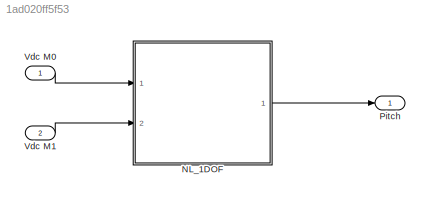
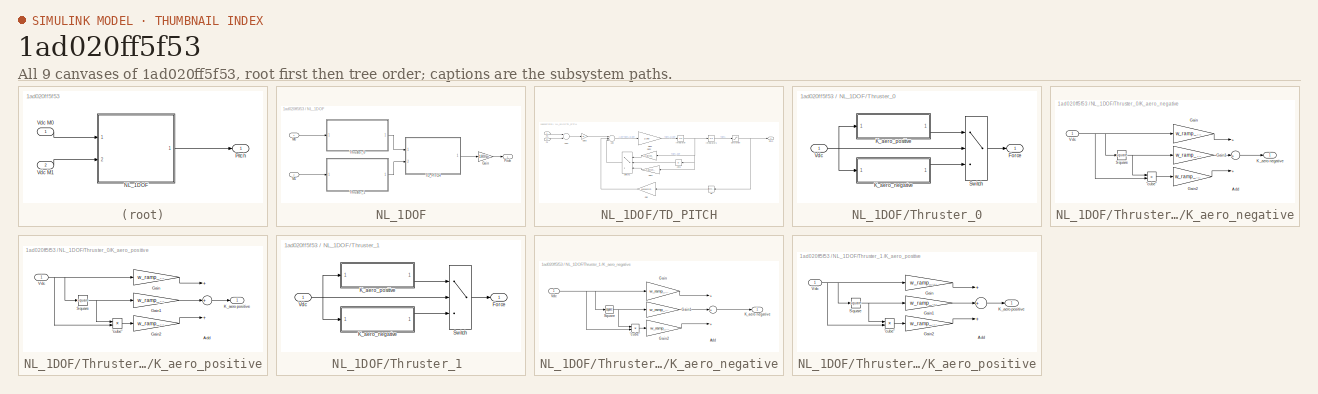
[diagram: thumbnail index - all 9 canvases of the model, root first then tree order]
MODEL slx_1ad020ff5f53
KIND model
CONFIG AbsTol = auto
CONFIG EnableMultiTasking = off
CONFIG FixedStep = auto
CONFIG InitFcn = load("parameters.mat")\nload("Coefficients.mat")
CONFIG MaxStep = auto
CONFIG MinStep = auto
CONFIG RelTol = 1e-3
CONFIG SampleTimeConstraint = Unconstrained
CONFIG Solver = VariableStepAuto
CONFIG SolverName = VariableStepAuto
CONFIG StartTime = 0.0
CONFIG StopTime = 50
BLOCK [SubSystem] NL_1DOF
  Ports = [2, 1]
  RequestExecContextInheritance = off
BLOCK [Gain] NL_1DOF/Gain
  Gain = 180/pi
  OutDataTypeStr = Inherit: Inherit via internal rule
  ParamDataTypeStr = Inherit: Inherit via internal rule
  SaturateOnIntegerOverflow = off
BLOCK [Inport] NL_1DOF/M0
  IconDisplay = Port number
BLOCK [Inport] NL_1DOF/M1 
  IconDisplay = Port number
  Port = 2
BLOCK [Outport] NL_1DOF/Pitch
  IconDisplay = Port number
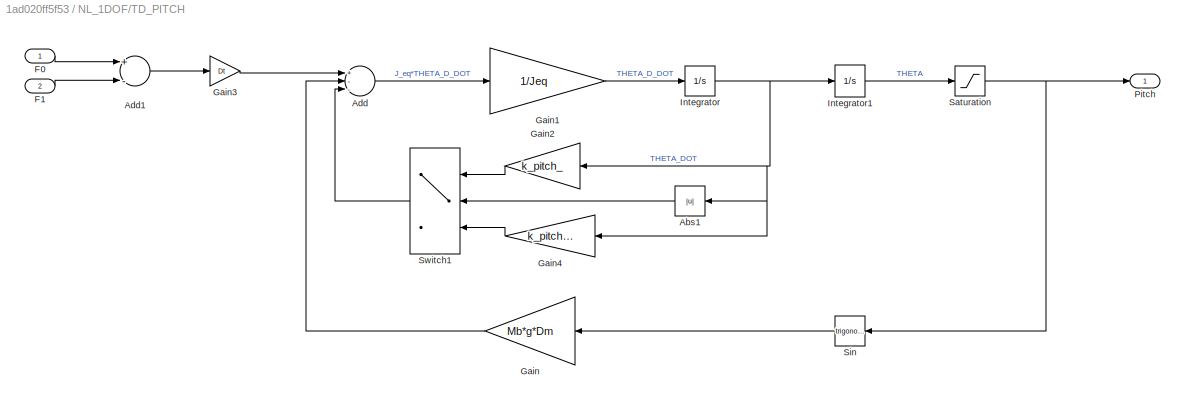
BLOCK [SubSystem] NL_1DOF/TD_PITCH
  Ports = [2, 1]
  RequestExecContextInheritance = off
BLOCK [Abs] NL_1DOF/TD_PITCH/Abs1
  SaturateOnIntegerOverflow = off
BLOCK [Sum] NL_1DOF/TD_PITCH/Add
  InputSameDT = off
  Inputs = +--
  OutDataTypeStr = Inherit: Inherit via internal rule
  Ports = [3, 1]
  SaturateOnIntegerOverflow = off
BLOCK [Sum] NL_1DOF/TD_PITCH/Add1
  InputSameDT = off
  Inputs = +-
  OutDataTypeStr = Inherit: Inherit via internal rule
  Ports = [2, 1]
  SaturateOnIntegerOverflow = off
BLOCK [Inport] NL_1DOF/TD_PITCH/F0
  IconDisplay = Port number
BLOCK [Inport] NL_1DOF/TD_PITCH/F1 
  IconDisplay = Port number
  Port = 2
BLOCK [Gain] NL_1DOF/TD_PITCH/Gain
  Gain = Mb*g*Dm
  OutDataTypeStr = Inherit: Inherit via internal rule
  ParamDataTypeStr = Inherit: Inherit via internal rule
  SaturateOnIntegerOverflow = off
BLOCK [Gain] NL_1DOF/TD_PITCH/Gain1
  Gain = 1/Jeq
  OutDataTypeStr = Inherit: Inherit via internal rule
  ParamDataTypeStr = Inherit: Inherit via internal rule
  SaturateOnIntegerOverflow = off
BLOCK [Gain] NL_1DOF/TD_PITCH/Gain2
  Gain = k_pitch_
  OutDataTypeStr = Inherit: Inherit via internal rule
  ParamDataTypeStr = Inherit: Inherit via internal rule
  SaturateOnIntegerOverflow = off
BLOCK [Gain] NL_1DOF/TD_PITCH/Gain3
  Gain = Dt
  OutDataTypeStr = Inherit: Inherit via internal rule
  ParamDataTypeStr = Inherit: Inherit via internal rule
  SaturateOnIntegerOverflow = off
BLOCK [Gain] NL_1DOF/TD_PITCH/Gain4
  Gain = k_pitch_ * 5
  OutDataTypeStr = Inherit: Inherit via internal rule
  ParamDataTypeStr = Inherit: Inherit via internal rule
  SaturateOnIntegerOverflow = off
BLOCK [Integrator] NL_1DOF/TD_PITCH/Integrator
  Ports = [1, 1]
BLOCK [Integrator] NL_1DOF/TD_PITCH/Integrator1
  Ports = [1, 1]
BLOCK [Outport] NL_1DOF/TD_PITCH/Pitch
  IconDisplay = Port number
BLOCK [Saturate] NL_1DOF/TD_PITCH/Saturation
  InputPortMap = u0
  LowerLimit = -p_sat_Hor_touch
  Ports = [1, 1]
  UpperLimit = p_sat_Hor_touch
BLOCK [Trigonometry] NL_1DOF/TD_PITCH/Sin
  Ports = [1, 1]
BLOCK [Switch] NL_1DOF/TD_PITCH/Switch1
  Criteria = u2 > Threshold
  InputSameDT = off
  SaturateOnIntegerOverflow = off
  Threshold = 0.15
BLOCK [SubSystem] NL_1DOF/Thruster_0
  Ports = [1, 1]
  RequestExecContextInheritance = off
BLOCK [Outport] NL_1DOF/Thruster_0/Force
  IconDisplay = Port number
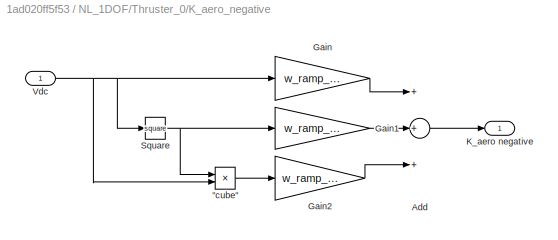
BLOCK [SubSystem] NL_1DOF/Thruster_0/K_aero_negative
  Ports = [1, 1]
  RequestExecContextInheritance = off
BLOCK [Product] NL_1DOF/Thruster_0/K_aero_negative/"cube"
  InputSameDT = off
  Inputs = **
  OutDataTypeStr = Inherit: Inherit via internal rule
  Ports = [2, 1]
  RndMeth = Floor
  SaturateOnIntegerOverflow = off
BLOCK [Sum] NL_1DOF/Thruster_0/K_aero_negative/Add
  InputSameDT = off
  Inputs = +++
  OutDataTypeStr = Inherit: Inherit via internal rule
  Ports = [3, 1]
  SaturateOnIntegerOverflow = off
BLOCK [Gain] NL_1DOF/Thruster_0/K_aero_negative/Gain
  Gain = w_ramp_0N(3)
  OutDataTypeStr = Inherit: Inherit via internal rule
  ParamDataTypeStr = Inherit: Inherit via internal rule
  SaturateOnIntegerOverflow = off
BLOCK [Gain] NL_1DOF/Thruster_0/K_aero_negative/Gain1
  Gain = w_ramp_0N(2)
  OutDataTypeStr = Inherit: Inherit via internal rule
  ParamDataTypeStr = Inherit: Inherit via internal rule
  SaturateOnIntegerOverflow = off
BLOCK [Gain] NL_1DOF/Thruster_0/K_aero_negative/Gain2
  Gain = w_ramp_0N(1)
  OutDataTypeStr = Inherit: Inherit via internal rule
  ParamDataTypeStr = Inherit: Inherit via internal rule
  SaturateOnIntegerOverflow = off
BLOCK [Outport] NL_1DOF/Thruster_0/K_aero_negative/K_aero negative
  IconDisplay = Port number
BLOCK [Math] NL_1DOF/Thruster_0/K_aero_negative/Square
  Operator = square
  Ports = [1, 1]
  SignedPower = off
BLOCK [Inport] NL_1DOF/Thruster_0/K_aero_negative/Vdc
  IconDisplay = Port number
BLOCK [SubSystem] NL_1DOF/Thruster_0/K_aero_positive
  Ports = [1, 1]
  RequestExecContextInheritance = off
BLOCK [Product] NL_1DOF/Thruster_0/K_aero_positive/"cube"
  InputSameDT = off
  Inputs = **
  OutDataTypeStr = Inherit: Inherit via internal rule
  Ports = [2, 1]
  RndMeth = Floor
  SaturateOnIntegerOverflow = off
BLOCK [Sum] NL_1DOF/Thruster_0/K_aero_positive/Add
  InputSameDT = off
  Inputs = +++
  OutDataTypeStr = Inherit: Inherit via internal rule
  Ports = [3, 1]
  SaturateOnIntegerOverflow = off
BLOCK [Gain] NL_1DOF/Thruster_0/K_aero_positive/Gain
  Gain = w_ramp_0P(3)
  OutDataTypeStr = Inherit: Inherit via internal rule
  ParamDataTypeStr = Inherit: Inherit via internal rule
  SaturateOnIntegerOverflow = off
BLOCK [Gain] NL_1DOF/Thruster_0/K_aero_positive/Gain1
  Gain = w_ramp_0P(2)
  OutDataTypeStr = Inherit: Inherit via internal rule
  ParamDataTypeStr = Inherit: Inherit via internal rule
  SaturateOnIntegerOverflow = off
BLOCK [Gain] NL_1DOF/Thruster_0/K_aero_positive/Gain2
  Gain = w_ramp_0P(1)
  OutDataTypeStr = Inherit: Inherit via internal rule
  ParamDataTypeStr = Inherit: Inherit via internal rule
  SaturateOnIntegerOverflow = off
BLOCK [Outport] NL_1DOF/Thruster_0/K_aero_positive/K_aero positive
  IconDisplay = Port number
BLOCK [Math] NL_1DOF/Thruster_0/K_aero_positive/Square
  Operator = square
  Ports = [1, 1]
  SignedPower = off
BLOCK [Inport] NL_1DOF/Thruster_0/K_aero_positive/Vdc
  IconDisplay = Port number
BLOCK [Switch] NL_1DOF/Thruster_0/Switch
  Criteria = u2 > Threshold
  InputSameDT = off
  SaturateOnIntegerOverflow = off
BLOCK [Inport] NL_1DOF/Thruster_0/Vdc
  IconDisplay = Port number
BLOCK [SubSystem] NL_1DOF/Thruster_1 
  Ports = [1, 1]
  RequestExecContextInheritance = off
BLOCK [Outport] NL_1DOF/Thruster_1 /Force
  IconDisplay = Port number
BLOCK [SubSystem] NL_1DOF/Thruster_1 /K_aero_negative
  Ports = [1, 1]
  RequestExecContextInheritance = off
BLOCK [Product] NL_1DOF/Thruster_1 /K_aero_negative/"cube"
  InputSameDT = off
  Inputs = **
  OutDataTypeStr = Inherit: Inherit via internal rule
  Ports = [2, 1]
  RndMeth = Floor
  SaturateOnIntegerOverflow = off
BLOCK [Sum] NL_1DOF/Thruster_1 /K_aero_negative/Add
  InputSameDT = off
  Inputs = +++
  OutDataTypeStr = Inherit: Inherit via internal rule
  Ports = [3, 1]
  SaturateOnIntegerOverflow = off
BLOCK [Gain] NL_1DOF/Thruster_1 /K_aero_negative/Gain
  Gain = w_ramp_1N(3)
  OutDataTypeStr = Inherit: Inherit via internal rule
  ParamDataTypeStr = Inherit: Inherit via internal rule
  SaturateOnIntegerOverflow = off
BLOCK [Gain] NL_1DOF/Thruster_1 /K_aero_negative/Gain1
  Gain = w_ramp_1N(2)
  OutDataTypeStr = Inherit: Inherit via internal rule
  ParamDataTypeStr = Inherit: Inherit via internal rule
  SaturateOnIntegerOverflow = off
BLOCK [Gain] NL_1DOF/Thruster_1 /K_aero_negative/Gain2
  Gain = w_ramp_1N(1)
  OutDataTypeStr = Inherit: Inherit via internal rule
  ParamDataTypeStr = Inherit: Inherit via internal rule
  SaturateOnIntegerOverflow = off
BLOCK [Outport] NL_1DOF/Thruster_1 /K_aero_negative/K_aero negative
  IconDisplay = Port number
BLOCK [Math] NL_1DOF/Thruster_1 /K_aero_negative/Square
  Operator = square
  Ports = [1, 1]
  SignedPower = off
BLOCK [Inport] NL_1DOF/Thruster_1 /K_aero_negative/Vdc
  IconDisplay = Port number
BLOCK [SubSystem] NL_1DOF/Thruster_1 /K_aero_positive
  Ports = [1, 1]
  RequestExecContextInheritance = off
BLOCK [Product] NL_1DOF/Thruster_1 /K_aero_positive/"cube"
  InputSameDT = off
  Inputs = **
  OutDataTypeStr = Inherit: Inherit via internal rule
  Ports = [2, 1]
  RndMeth = Floor
  SaturateOnIntegerOverflow = off
BLOCK [Sum] NL_1DOF/Thruster_1 /K_aero_positive/Add
  InputSameDT = off
  Inputs = +++
  OutDataTypeStr = Inherit: Inherit via internal rule
  Ports = [3, 1]
  SaturateOnIntegerOverflow = off
BLOCK [Gain] NL_1DOF/Thruster_1 /K_aero_positive/Gain
  Gain = w_ramp_1P(3)
  OutDataTypeStr = Inherit: Inherit via internal rule
  ParamDataTypeStr = Inherit: Inherit via internal rule
  SaturateOnIntegerOverflow = off
BLOCK [Gain] NL_1DOF/Thruster_1 /K_aero_positive/Gain1
  Gain = w_ramp_1P(2)
  OutDataTypeStr = Inherit: Inherit via internal rule
  ParamDataTypeStr = Inherit: Inherit via internal rule
  SaturateOnIntegerOverflow = off
BLOCK [Gain] NL_1DOF/Thruster_1 /K_aero_positive/Gain2
  Gain = w_ramp_1P(1)
  OutDataTypeStr = Inherit: Inherit via internal rule
  ParamDataTypeStr = Inherit: Inherit via internal rule
  SaturateOnIntegerOverflow = off
BLOCK [Outport] NL_1DOF/Thruster_1 /K_aero_positive/K_aero positive
  IconDisplay = Port number
BLOCK [Math] NL_1DOF/Thruster_1 /K_aero_positive/Square
  Operator = square
  Ports = [1, 1]
  SignedPower = off
BLOCK [Inport] NL_1DOF/Thruster_1 /K_aero_positive/Vdc
  IconDisplay = Port number
BLOCK [Switch] NL_1DOF/Thruster_1 /Switch
  Criteria = u2 > Threshold
  InputSameDT = off
  SaturateOnIntegerOverflow = off
BLOCK [Inport] NL_1DOF/Thruster_1 /Vdc
  IconDisplay = Port number
BLOCK [Outport] Pitch
  IconDisplay = Port number
BLOCK [Inport] Vdc M0
  IconDisplay = Port number
BLOCK [Inport] Vdc M1
  IconDisplay = Port number
  Port = 2
LINE NL_1DOF/Gain:1 -> NL_1DOF/Pitch:1
LINE NL_1DOF/M0:1 -> NL_1DOF/Thruster_0:1
LINE NL_1DOF/M1 :1 -> NL_1DOF/Thruster_1 :1
LINE NL_1DOF/TD_PITCH/Abs1:1 -> NL_1DOF/TD_PITCH/Switch1:2
LINE NL_1DOF/TD_PITCH/Add1:1 -> NL_1DOF/TD_PITCH/Gain3:1
LINE NL_1DOF/TD_PITCH/Add:1 -> NL_1DOF/TD_PITCH/Gain1:1
LINE NL_1DOF/TD_PITCH/F0:1 -> NL_1DOF/TD_PITCH/Add1:1
LINE NL_1DOF/TD_PITCH/F1 :1 -> NL_1DOF/TD_PITCH/Add1:2
LINE NL_1DOF/TD_PITCH/Gain1:1 -> NL_1DOF/TD_PITCH/Integrator:1
LINE NL_1DOF/TD_PITCH/Gain2:1 -> NL_1DOF/TD_PITCH/Switch1:1
LINE NL_1DOF/TD_PITCH/Gain3:1 -> NL_1DOF/TD_PITCH/Add:1
LINE NL_1DOF/TD_PITCH/Gain4:1 -> NL_1DOF/TD_PITCH/Switch1:3
LINE NL_1DOF/TD_PITCH/Gain:1 -> NL_1DOF/TD_PITCH/Add:2
LINE NL_1DOF/TD_PITCH/Integrator1:1 -> NL_1DOF/TD_PITCH/Saturation:1
NET NL_1DOF/TD_PITCH/Integrator:1 -> NL_1DOF/TD_PITCH/Abs1:1, NL_1DOF/TD_PITCH/Gain2:1, NL_1DOF/TD_PITCH/Gain4:1, NL_1DOF/TD_PITCH/Integrator1:1
NET NL_1DOF/TD_PITCH/Saturation:1 -> NL_1DOF/TD_PITCH/Pitch:1, NL_1DOF/TD_PITCH/Sin:1
LINE NL_1DOF/TD_PITCH/Sin:1 -> NL_1DOF/TD_PITCH/Gain:1
LINE NL_1DOF/TD_PITCH/Switch1:1 -> NL_1DOF/TD_PITCH/Add:3
LINE NL_1DOF/TD_PITCH:1 -> NL_1DOF/Gain:1
LINE NL_1DOF/Thruster_0/K_aero_negative/"cube":1 -> NL_1DOF/Thruster_0/K_aero_negative/Gain2:1
LINE NL_1DOF/Thruster_0/K_aero_negative/Add:1 -> NL_1DOF/Thruster_0/K_aero_negative/K_aero negative:1
LINE NL_1DOF/Thruster_0/K_aero_negative/Gain1:1 -> NL_1DOF/Thruster_0/K_aero_negative/Add:2
LINE NL_1DOF/Thruster_0/K_aero_negative/Gain2:1 -> NL_1DOF/Thruster_0/K_aero_negative/Add:3
LINE NL_1DOF/Thruster_0/K_aero_negative/Gain:1 -> NL_1DOF/Thruster_0/K_aero_negative/Add:1
NET NL_1DOF/Thruster_0/K_aero_negative/Square:1 -> NL_1DOF/Thruster_0/K_aero_negative/"cube":1, NL_1DOF/Thruster_0/K_aero_negative/Gain1:1
NET NL_1DOF/Thruster_0/K_aero_negative/Vdc:1 -> NL_1DOF/Thruster_0/K_aero_negative/"cube":2, NL_1DOF/Thruster_0/K_aero_negative/Gain:1, NL_1DOF/Thruster_0/K_aero_negative/Square:1
LINE NL_1DOF/Thruster_0/K_aero_negative:1 -> NL_1DOF/Thruster_0/Switch:3
LINE NL_1DOF/Thruster_0/K_aero_positive/"cube":1 -> NL_1DOF/Thruster_0/K_aero_positive/Gain2:1
LINE NL_1DOF/Thruster_0/K_aero_positive/Add:1 -> NL_1DOF/Thruster_0/K_aero_positive/K_aero positive:1
LINE NL_1DOF/Thruster_0/K_aero_positive/Gain1:1 -> NL_1DOF/Thruster_0/K_aero_positive/Add:2
LINE NL_1DOF/Thruster_0/K_aero_positive/Gain2:1 -> NL_1DOF/Thruster_0/K_aero_positive/Add:3
LINE NL_1DOF/Thruster_0/K_aero_positive/Gain:1 -> NL_1DOF/Thruster_0/K_aero_positive/Add:1
NET NL_1DOF/Thruster_0/K_aero_positive/Square:1 -> NL_1DOF/Thruster_0/K_aero_positive/"cube":1, NL_1DOF/Thruster_0/K_aero_positive/Gain1:1
NET NL_1DOF/Thruster_0/K_aero_positive/Vdc:1 -> NL_1DOF/Thruster_0/K_aero_positive/"cube":2, NL_1DOF/Thruster_0/K_aero_positive/Gain:1, NL_1DOF/Thruster_0/K_aero_positive/Square:1
LINE NL_1DOF/Thruster_0/K_aero_positive:1 -> NL_1DOF/Thruster_0/Switch:1
LINE NL_1DOF/Thruster_0/Switch:1 -> NL_1DOF/Thruster_0/Force:1
NET NL_1DOF/Thruster_0/Vdc:1 -> NL_1DOF/Thruster_0/K_aero_negative:1, NL_1DOF/Thruster_0/K_aero_positive:1, NL_1DOF/Thruster_0/Switch:2
LINE NL_1DOF/Thruster_0:1 -> NL_1DOF/TD_PITCH:1
LINE NL_1DOF/Thruster_1 /K_aero_negative/"cube":1 -> NL_1DOF/Thruster_1 /K_aero_negative/Gain2:1
LINE NL_1DOF/Thruster_1 /K_aero_negative/Add:1 -> NL_1DOF/Thruster_1 /K_aero_negative/K_aero negative:1
LINE NL_1DOF/Thruster_1 /K_aero_negative/Gain1:1 -> NL_1DOF/Thruster_1 /K_aero_negative/Add:2
LINE NL_1DOF/Thruster_1 /K_aero_negative/Gain2:1 -> NL_1DOF/Thruster_1 /K_aero_negative/Add:3
LINE NL_1DOF/Thruster_1 /K_aero_negative/Gain:1 -> NL_1DOF/Thruster_1 /K_aero_negative/Add:1
NET NL_1DOF/Thruster_1 /K_aero_negative/Square:1 -> NL_1DOF/Thruster_1 /K_aero_negative/"cube":1, NL_1DOF/Thruster_1 /K_aero_negative/Gain1:1
NET NL_1DOF/Thruster_1 /K_aero_negative/Vdc:1 -> NL_1DOF/Thruster_1 /K_aero_negative/"cube":2, NL_1DOF/Thruster_1 /K_aero_negative/Gain:1, NL_1DOF/Thruster_1 /K_aero_negative/Square:1
LINE NL_1DOF/Thruster_1 /K_aero_negative:1 -> NL_1DOF/Thruster_1 /Switch:3
LINE NL_1DOF/Thruster_1 /K_aero_positive/"cube":1 -> NL_1DOF/Thruster_1 /K_aero_positive/Gain2:1
LINE NL_1DOF/Thruster_1 /K_aero_positive/Add:1 -> NL_1DOF/Thruster_1 /K_aero_positive/K_aero positive:1
LINE NL_1DOF/Thruster_1 /K_aero_positive/Gain1:1 -> NL_1DOF/Thruster_1 /K_aero_positive/Add:2
LINE NL_1DOF/Thruster_1 /K_aero_positive/Gain2:1 -> NL_1DOF/Thruster_1 /K_aero_positive/Add:3
LINE NL_1DOF/Thruster_1 /K_aero_positive/Gain:1 -> NL_1DOF/Thruster_1 /K_aero_positive/Add:1
NET NL_1DOF/Thruster_1 /K_aero_positive/Square:1 -> NL_1DOF/Thruster_1 /K_aero_positive/"cube":1, NL_1DOF/Thruster_1 /K_aero_positive/Gain1:1
NET NL_1DOF/Thruster_1 /K_aero_positive/Vdc:1 -> NL_1DOF/Thruster_1 /K_aero_positive/"cube":2, NL_1DOF/Thruster_1 /K_aero_positive/Gain:1, NL_1DOF/Thruster_1 /K_aero_positive/Square:1
LINE NL_1DOF/Thruster_1 /K_aero_positive:1 -> NL_1DOF/Thruster_1 /Switch:1
LINE NL_1DOF/Thruster_1 /Switch:1 -> NL_1DOF/Thruster_1 /Force:1
NET NL_1DOF/Thruster_1 /Vdc:1 -> NL_1DOF/Thruster_1 /K_aero_negative:1, NL_1DOF/Thruster_1 /K_aero_positive:1, NL_1DOF/Thruster_1 /Switch:2
LINE NL_1DOF/Thruster_1 :1 -> NL_1DOF/TD_PITCH:2
LINE NL_1DOF:1 -> Pitch:1
LINE Vdc M0:1 -> NL_1DOF:1
LINE Vdc M1:1 -> NL_1DOF:2
note: NET lines group one-source signal fan-out (src -> all destinations, sorted); 1:1 wires keep LINE
